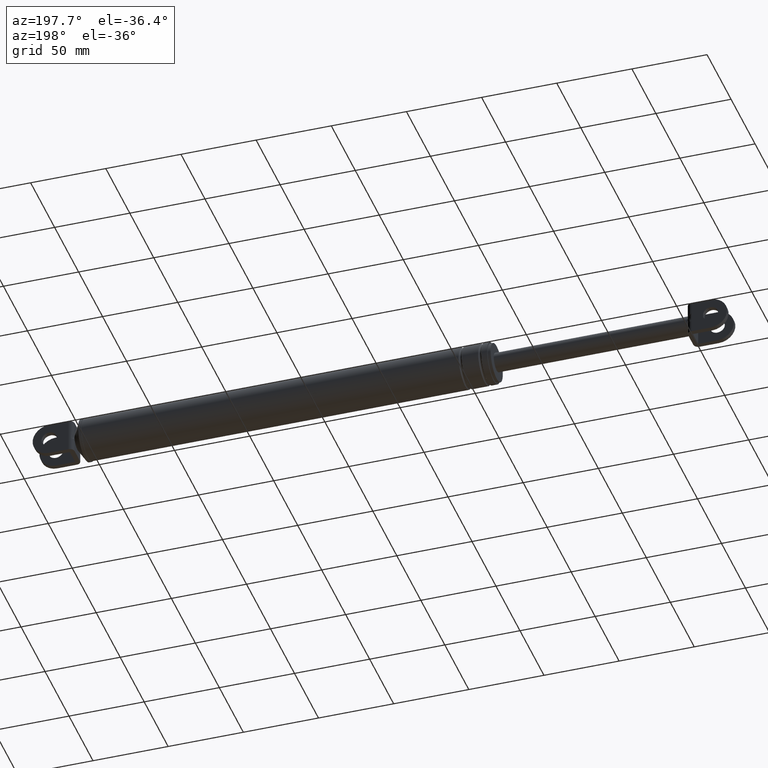
[diagram: clean part render]
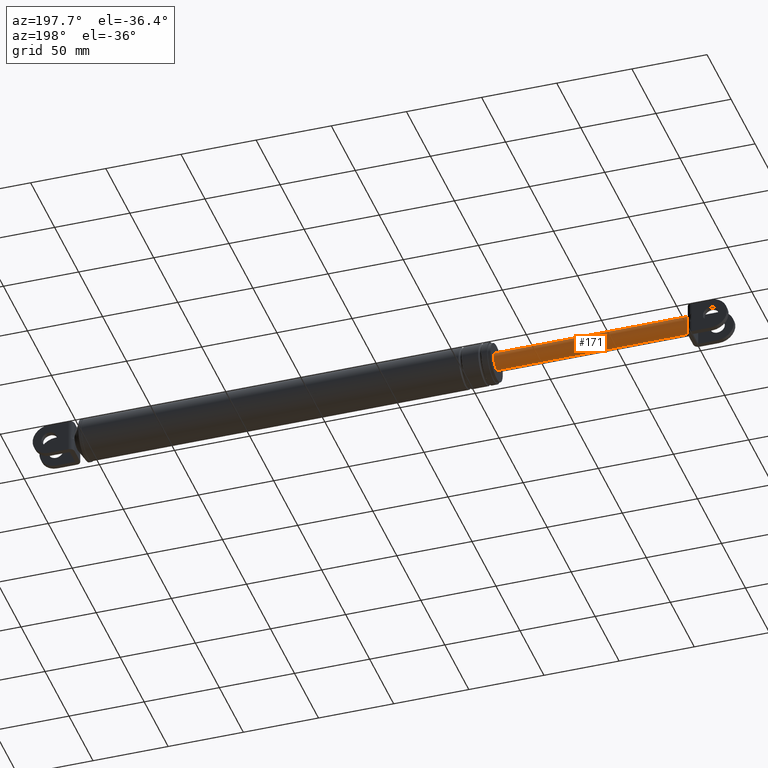
[diagram: same view with one face highlighted and labeled with its STEP entity id]
A machine part, auxiliary view. The second image highlights one B-rep face of the part: STEP entity #171.
In plain terms, the highlighted cylindrical surface (edge-blend (fillet) strip) has radius 6.25 mm, axis along (-1, 0, 0).
Its self-contained STEP definition (entity closure, byte-faithful):
#171=ADVANCED_FACE('',(#777),#776,.T.);
#776=CYLINDRICAL_SURFACE('',#1907,6.25000000000E+000);
#777=FACE_OUTER_BOUND('',#1908,.T.);
#1904=CARTESIAN_POINT('',(-3.32460913929E+000,-3.41042228289E-013,1.89728345508E+002));
#1905=DIRECTION('',(-1.00000000000E+000,8.03887338846E-016,5.15686441477E-029));
#1906=DIRECTION('',(-5.22293832883E-029,-8.21930025183E-016,-1.00000000000E+000));
#1907=AXIS2_PLACEMENT_3D('',#1904,#1905,#1906);
#1908=EDGE_LOOP('',(#2219,#2220,#2221,#2222,#2223,#2224));
#2219=ORIENTED_EDGE('',*,*,#2390,.F.);
#2220=ORIENTED_EDGE('',*,*,#2391,.T.);
#2221=ORIENTED_EDGE('',*,*,#2376,.F.);
#2222=ORIENTED_EDGE('',*,*,#2361,.F.);
#2223=ORIENTED_EDGE('',*,*,#2370,.F.);
#2224=ORIENTED_EDGE('',*,*,#2392,.F.);
#2361=EDGE_CURVE('',#3164,#3184,#3198,.T.);
#2370=EDGE_CURVE('',#3250,#3164,#3257,.T.);
#2376=EDGE_CURVE('',#3184,#3297,#3298,.T.);
#2390=EDGE_CURVE('',#3382,#3381,#3389,.T.);
#2391=EDGE_CURVE('',#3382,#3297,#3395,.T.);
#2392=EDGE_CURVE('',#3381,#3250,#3401,.T.);
#3164=VERTEX_POINT('',#3923);
#3184=VERTEX_POINT('',#3935);
#3198=CIRCLE('',#3954,6.25000000000E+000);
#3250=VERTEX_POINT('',#3982);
#3257=CIRCLE('',#3990,6.25000000000E+000);
#3297=VERTEX_POINT('',#4012);
#3298=CIRCLE('',#4016,6.25000000000E+000);
#3381=VERTEX_POINT('',#4063);
#3382=VERTEX_POINT('',#4064);
#3389=CIRCLE('',#4072,6.25000000000E+000);
#3395=(BOUNDED_CURVE() B_SPLINE_CURVE(1,(#4073,#4074),.UNSPECIFIED.,.F.,.F.) B_SPLINE_CURVE_WITH_KNOTS((2,2),(6.71140940856E-002,9.32885905909E-001),.UNSPECIFIED.) CURVE() GEOMETRIC_REPRESENTATION_ITEM() RATIONAL_B_SPLINE_CURVE((1.00000000000E+000,1.00000000000E+000)) REPRESENTATION_ITEM('') );
#3401=(BOUNDED_CURVE() B_SPLINE_CURVE(1,(#4075,#4076),.UNSPECIFIED.,.F.,.F.) B_SPLINE_CURVE_WITH_KNOTS((2,2),(6.71140939597E-002,9.32885906040E-001),.UNSPECIFIED.) CURVE() GEOMETRIC_REPRESENTATION_ITEM() RATIONAL_B_SPLINE_CURVE((7.50000000000E-001,7.50000000000E-001)) REPRESENTATION_ITEM('') );
#3923=CARTESIAN_POINT('',(6.67539086071E+000,5.49999700000E+000,1.92696936588E+002));
#3935=CARTESIAN_POINT('',(6.67539086071E+000,5.49999700000E+000,1.86759754428E+002));
#3951=CARTESIAN_POINT('',(6.67539086071E+000,6.75903777392E-013,1.89728345508E+002));
#3952=DIRECTION('',(-1.00000000000E+000,3.55271367880E-017,-6.58221831467E-017));
#3953=DIRECTION('',(-0.00000000000E+000,-8.79999520000E-001,-4.74974572793E-001));
#3954=AXIS2_PLACEMENT_3D('',#3951,#3952,#3953);
#3982=CARTESIAN_POINT('',(6.67539086071E+000,7.57710056628E-007,1.95978345508E+002));
#3987=CARTESIAN_POINT('',(6.67539086071E+000,2.88657986403E-013,1.89728345508E+002));
#3988=DIRECTION('',(-1.00000000000E+000,-4.94022366089E-017,-9.15289933251E-017));
#3989=DIRECTION('',(-0.00000000000E+000,8.79999520000E-001,-4.74974572793E-001));
#3990=AXIS2_PLACEMENT_3D('',#3987,#3988,#3989);
#4012=CARTESIAN_POINT('',(6.67539086071E+000,-4.62694381700E-012,1.83478345508E+002));
#4013=CARTESIAN_POINT('',(6.67539086071E+000,-6.90558721317E-013,1.89728345508E+002));
#4014=DIRECTION('',(-1.00000000000E+000,0.00000000000E+000,0.00000000000E+000));
#4015=DIRECTION('',(-0.00000000000E+000,-8.79999520000E-001,4.74974572793E-001));
#4016=AXIS2_PLACEMENT_3D('',#4013,#4014,#4015);
#4063=CARTESIAN_POINT('',(1.35675390861E+002,-4.52782568388E-013,1.95978345508E+002));
#4064=CARTESIAN_POINT('',(1.35675390861E+002,-4.51786756154E-013,1.83478345508E+002));
#4069=CARTESIAN_POINT('',(1.35675390861E+002,-4.52782568388E-013,1.89728345508E+002));
#4070=DIRECTION('',(1.00000000000E+000,0.00000000000E+000,-0.00000000000E+000));
#4071=DIRECTION('',(0.00000000000E+000,-1.22460635382E-016,1.00000000000E+000));
#4072=AXIS2_PLACEMENT_3D('',#4069,#4070,#4071);
#4073=CARTESIAN_POINT('',(1.35675390842E+002,-4.57919631030E-013,1.83478345508E+002));
#4074=CARTESIAN_POINT('',(6.67539088035E+000,-3.54218164350E-013,1.83478345508E+002));
#4075=CARTESIAN_POINT('',(1.35675390861E+002,-4.47292215695E-013,1.95978345508E+002));
#4076=CARTESIAN_POINT('',(6.67539086071E+000,-3.43482637312E-013,1.95978345508E+002));